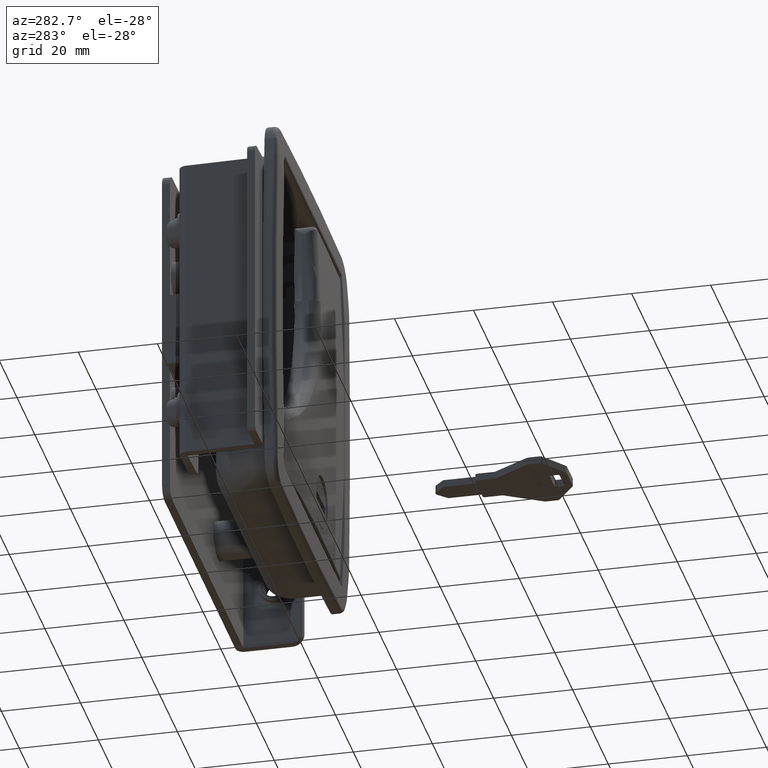
[diagram: clean part render]
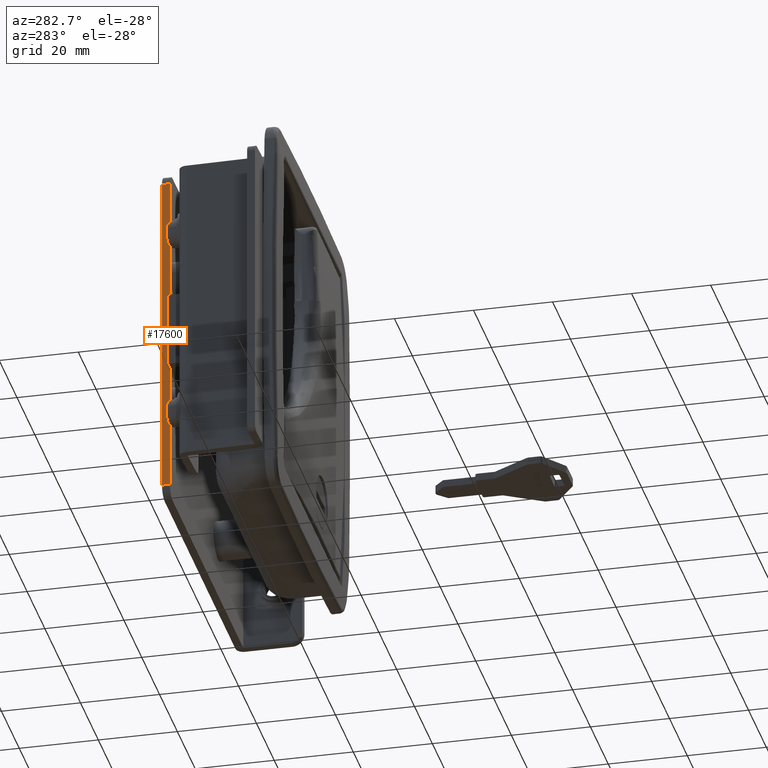
[diagram: same view with one face highlighted and labeled with its STEP entity id]
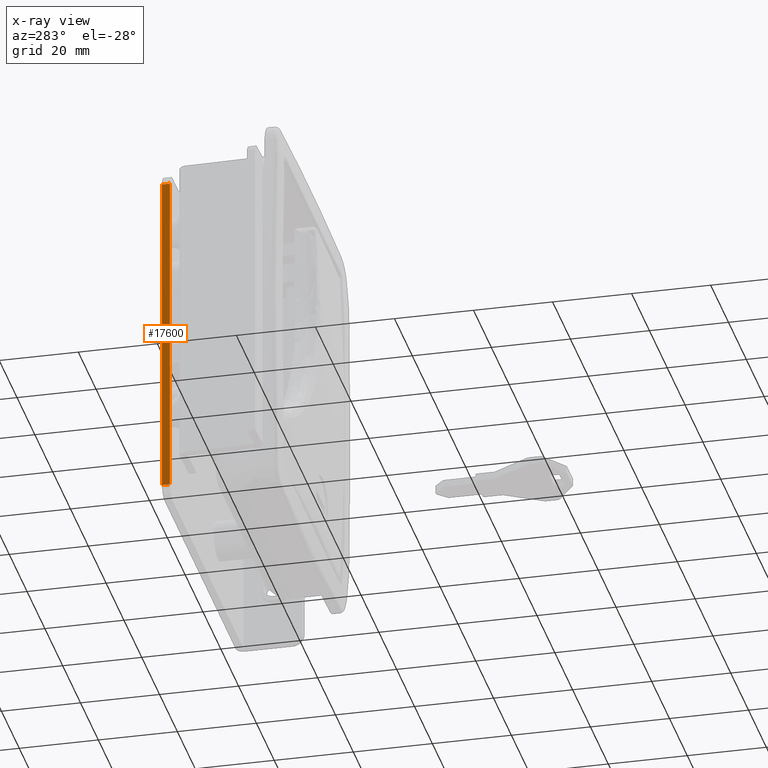
[diagram: x-ray of the same camera — body ghosted, the highlighted face saturated]
A machine part, auxiliary view. The second image highlights one B-rep face of the part: STEP entity #17600.
The next image is the same camera in x-ray: the body ghosted, the highlighted face saturated — about 0% of this face is hidden behind the body in this view.
In plain terms, the highlighted face is a freeform B-spline surface patch.
Its self-contained STEP definition (entity closure, byte-faithful):
#17229=CARTESIAN_POINT('',(-26.001000000000001,-2.0,-41.999699999999997));
#17230=VERTEX_POINT('',#17229);
#17242=CARTESIAN_POINT('',(-26.001000000000001,0.0,-41.999699999999997));
#17243=VERTEX_POINT('',#17242);
#17244=CARTESIAN_POINT('',(-26.001000000000001,-2.0,-41.999699999999997));
#17245=CARTESIAN_POINT('',(-26.001000000000001,0.0,-41.999699999999997));
#17246=QUASI_UNIFORM_CURVE('',1,(#17244,#17245),.UNSPECIFIED.,.F.,.U.);
#17247=EDGE_CURVE('',#17230,#17243,#17246,.T.);
#17284=CARTESIAN_POINT('',(-26.001000000000001,-2.0,42.0));
#17285=VERTEX_POINT('',#17284);
#17307=CARTESIAN_POINT('',(-26.001000000000001,0.0,42.0));
#17308=VERTEX_POINT('',#17307);
#17321=CARTESIAN_POINT('',(-26.001000000000001,0.0,42.0));
#17322=CARTESIAN_POINT('',(-26.001000000000001,-2.0,42.0));
#17323=QUASI_UNIFORM_CURVE('',1,(#17321,#17322),.UNSPECIFIED.,.F.,.U.);
#17324=EDGE_CURVE('',#17308,#17285,#17323,.T.);
#17428=CARTESIAN_POINT('',(-26.001000000000001,-2.0,-41.999699999999997));
#17429=CARTESIAN_POINT('',(-26.001000000000001,-2.0,42.0));
#17430=QUASI_UNIFORM_CURVE('',1,(#17428,#17429),.UNSPECIFIED.,.F.,.U.);
#17431=EDGE_CURVE('',#17230,#17285,#17430,.T.);
#17585=CARTESIAN_POINT('',(-26.001000000000001,0.099899996123612,46.195784552086359));
#17586=CARTESIAN_POINT('',(-26.001000000000001,0.099899996123612,-46.195480797007150));
#17587=CARTESIAN_POINT('',(-26.001000000000001,-2.099900049767792,46.195784552086373));
#17588=CARTESIAN_POINT('',(-26.001000000000001,-2.099900049767792,-46.195480797007150));
#17589=B_SPLINE_SURFACE_WITH_KNOTS('',1,1,((#17585,#17587),(#17586,#17588)),.UNSPECIFIED.,.F.,.F.,.U.,(2,2),(2,2),(0.0,92.391265349093516),(0.0,2.199800045891404),.UNSPECIFIED.);
#17590=CARTESIAN_POINT('',(-26.001000000000001,0.0,-41.999699999999997));
#17591=CARTESIAN_POINT('',(-26.001000000000001,0.0,42.0));
#17592=QUASI_UNIFORM_CURVE('',1,(#17590,#17591),.UNSPECIFIED.,.F.,.U.);
#17593=EDGE_CURVE('',#17243,#17308,#17592,.T.);
#17594=ORIENTED_EDGE('',*,*,#17593,.F.);
#17595=ORIENTED_EDGE('',*,*,#17247,.F.);
#17596=ORIENTED_EDGE('',*,*,#17431,.T.);
#17597=ORIENTED_EDGE('',*,*,#17324,.F.);
#17598=EDGE_LOOP('',(#17594,#17595,#17596,#17597));
#17599=FACE_OUTER_BOUND('',#17598,.T.);
#17600=ADVANCED_FACE('',(#17599),#17589,.T.);